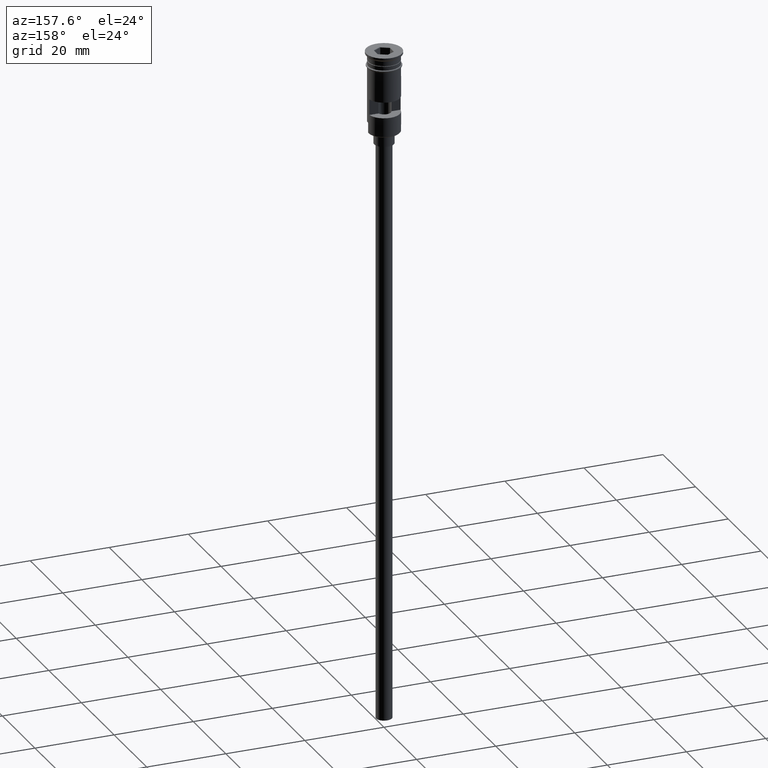
[diagram: clean part render]
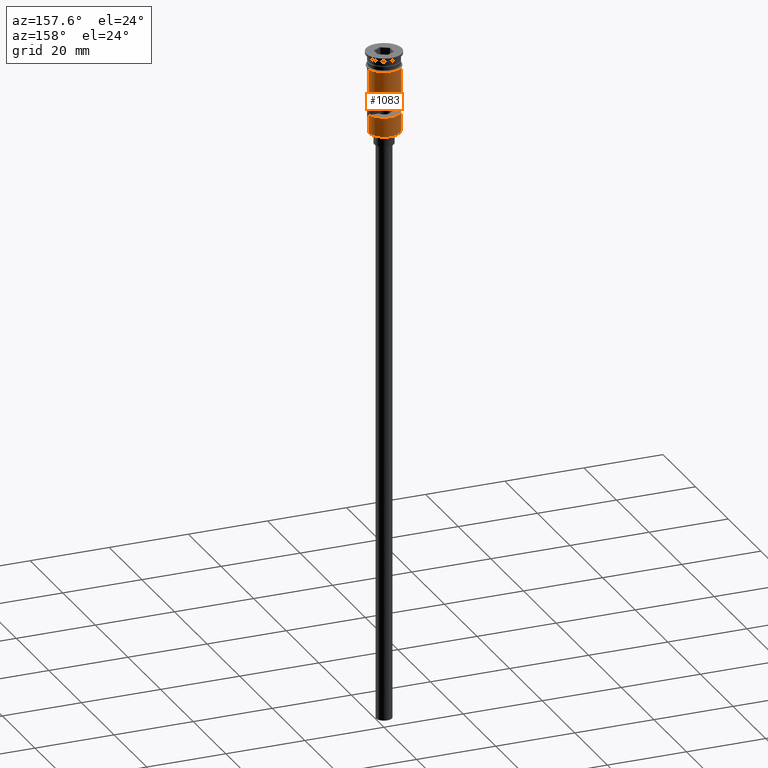
[diagram: same view with one face highlighted and labeled with its STEP entity id]
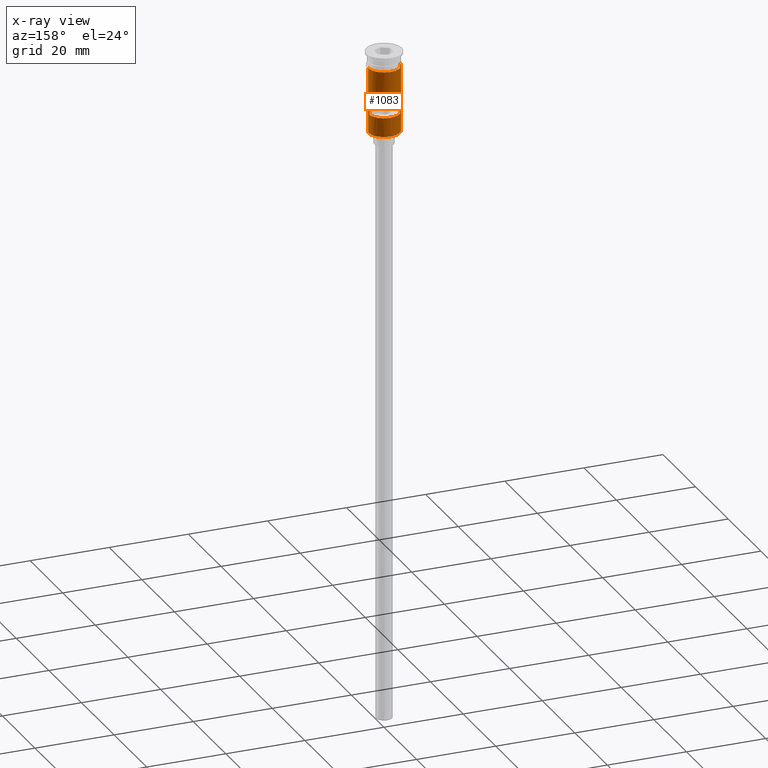
[diagram: x-ray of the same camera — body ghosted, the highlighted face saturated]
A machine part, auxiliary view. The second image highlights one B-rep face of the part: STEP entity #1083.
The next image is the same camera in x-ray: the body ghosted, the highlighted face saturated — about 0% of this face is hidden behind the body in this view.
In plain terms, the highlighted cylindrical surface (edge-blend (fillet) strip) has radius 4 mm, axis along (-0, -0, 1).
Its self-contained STEP definition (entity closure, byte-faithful):
#5 = EDGE_CURVE ( 'NONE', #924, #1554, #659, .T. ) ;
#10 = CIRCLE ( 'NONE', #212, 4.000000000000000000 ) ;
#20 = VERTEX_POINT ( 'NONE', #889 ) ;
#34 = AXIS2_PLACEMENT_3D ( 'NONE', #89, #579, #732 ) ;
#39 = CARTESIAN_POINT ( 'NONE',  ( 4.000000000000000000, 0.000000000000000000, -3.799999999999998490 ) ) ;
#64 = DIRECTION ( 'NONE',  ( 0.000000000000000000, 0.000000000000000000, 1.000000000000000000 ) ) ;
#71 = DIRECTION ( 'NONE',  ( -0.000000000000000000, -0.000000000000000000, 1.000000000000000000 ) ) ;
#80 = VECTOR ( 'NONE', #232, 1000.000000000000000 ) ;
#84 = EDGE_LOOP ( 'NONE', ( #1276, #1060, #537, #660, #120, #999 ) ) ;
#89 = CARTESIAN_POINT ( 'NONE',  ( 0.000000000000000000, 0.000000000000000000, -11.50000000000000000 ) ) ;
#91 = CARTESIAN_POINT ( 'NONE',  ( -3.954743986657037524, 0.5999999999999996447, -15.50000000000000000 ) ) ;
#109 = VERTEX_POINT ( 'NONE', #39 ) ;
#114 = VERTEX_POINT ( 'NONE', #521 ) ;
#120 = ORIENTED_EDGE ( 'NONE', *, *, #931, .F. ) ;
#137 = CIRCLE ( 'NONE', #34, 4.000000000000000000 ) ;
#212 = AXIS2_PLACEMENT_3D ( 'NONE', #677, #64, #555 ) ;
#232 = DIRECTION ( 'NONE',  ( -0.000000000000000000, -0.000000000000000000, 1.000000000000000000 ) ) ;
#255 = CARTESIAN_POINT ( 'NONE',  ( 3.954743986657037524, 0.5999999999999996447, 0.000000000000000000 ) ) ;
#282 = AXIS2_PLACEMENT_3D ( 'NONE', #1076, #595, #733 ) ;
#288 = VECTOR ( 'NONE', #405, 1000.000000000000000 ) ;
#314 = CYLINDRICAL_SURFACE ( 'NONE', #1323, 4.000000000000000000 ) ;
#322 = EDGE_CURVE ( 'NONE', #720, #1559, #1100, .T. ) ;
#331 = CARTESIAN_POINT ( 'NONE',  ( -4.000000000000000000, 4.898587196589412829E-16, 0.000000000000000000 ) ) ;
#337 = EDGE_CURVE ( 'NONE', #1554, #1435, #987, .T. ) ;
#339 = VERTEX_POINT ( 'NONE', #1568 ) ;
#373 = CARTESIAN_POINT ( 'NONE',  ( -4.000000000000000000, 4.898587196589412829E-16, -3.799999999999998490 ) ) ;
#380 = VECTOR ( 'NONE', #1130, 1000.000000000000000 ) ;
#392 = LINE ( 'NONE', #885, #992 ) ;
#405 = DIRECTION ( 'NONE',  ( -0.000000000000000000, -0.000000000000000000, 1.000000000000000000 ) ) ;
#435 = ORIENTED_EDGE ( 'NONE', *, *, #337, .F. ) ;
#444 = EDGE_CURVE ( 'NONE', #109, #1559, #1502, .T. ) ;
#446 = CARTESIAN_POINT ( 'NONE',  ( -3.999999999999997335, 0.000000000000000000, -17.79999999999998295 ) ) ;
#521 = CARTESIAN_POINT ( 'NONE',  ( 3.999999999999997335, 4.898587196589409870E-16, -20.29999999999997584 ) ) ;
#537 = ORIENTED_EDGE ( 'NONE', *, *, #444, .F. ) ;
#555 = DIRECTION ( 'NONE',  ( -1.000000000000000000, 0.000000000000000000, 0.000000000000000000 ) ) ;
#579 = DIRECTION ( 'NONE',  ( -0.000000000000000000, 0.000000000000000000, -1.000000000000000000 ) ) ;
#595 = DIRECTION ( 'NONE',  ( 0.000000000000000000, 0.000000000000000000, 1.000000000000000000 ) ) ;
#626 = EDGE_CURVE ( 'NONE', #20, #109, #1405, .T. ) ;
#659 = LINE ( 'NONE', #255, #380 ) ;
#660 = ORIENTED_EDGE ( 'NONE', *, *, #626, .F. ) ;
#663 = LINE ( 'NONE', #794, #750 ) ;
#677 = CARTESIAN_POINT ( 'NONE',  ( 0.000000000000000000, 0.000000000000000000, -20.29999999999997584 ) ) ;
#683 = CARTESIAN_POINT ( 'NONE',  ( -3.999999999999997335, 0.000000000000000000, -20.29999999999997584 ) ) ;
#720 = VERTEX_POINT ( 'NONE', #446 ) ;
#732 = DIRECTION ( 'NONE',  ( 1.000000000000000000, 0.000000000000000000, 0.000000000000000000 ) ) ;
#733 = DIRECTION ( 'NONE',  ( -1.000000000000000000, 0.000000000000000000, 0.000000000000000000 ) ) ;
#750 = VECTOR ( 'NONE', #1418, 1000.000000000000000 ) ;
#770 = EDGE_CURVE ( 'NONE', #339, #924, #137, .T. ) ;
#794 = CARTESIAN_POINT ( 'NONE',  ( -3.954743986657037524, 0.5999999999999996447, 0.000000000000000000 ) ) ;
#802 = AXIS2_PLACEMENT_3D ( 'NONE', #1113, #1504, #1121 ) ;
#827 = ORIENTED_EDGE ( 'NONE', *, *, #990, .F. ) ;
#885 = CARTESIAN_POINT ( 'NONE',  ( 3.999999999999997335, 4.898587196589409870E-16, -20.49999999999999645 ) ) ;
#889 = CARTESIAN_POINT ( 'NONE',  ( 4.000000000000000000, 4.898587196589412829E-16, -17.79999999999998295 ) ) ;
#911 = FACE_OUTER_BOUND ( 'NONE', #84, .T. ) ;
#924 = VERTEX_POINT ( 'NONE', #1263 ) ;
#931 = EDGE_CURVE ( 'NONE', #114, #20, #392, .T. ) ;
#954 = ORIENTED_EDGE ( 'NONE', *, *, #770, .F. ) ;
#987 = CIRCLE ( 'NONE', #282, 4.000000000000000000 ) ;
#990 = EDGE_CURVE ( 'NONE', #1435, #339, #663, .T. ) ;
#992 = VECTOR ( 'NONE', #1380, 1000.000000000000000 ) ;
#999 = ORIENTED_EDGE ( 'NONE', *, *, #1102, .T. ) ;
#1032 = FACE_BOUND ( 'NONE', #1325, .T. ) ;
#1048 = CARTESIAN_POINT ( 'NONE',  ( 4.000000000000000000, 0.000000000000000000, 0.000000000000000000 ) ) ;
#1060 = ORIENTED_EDGE ( 'NONE', *, *, #322, .T. ) ;
#1076 = CARTESIAN_POINT ( 'NONE',  ( 0.000000000000000000, 0.000000000000000000, -15.50000000000000000 ) ) ;
#1083 = ADVANCED_FACE ( 'NONE', ( #1032, #911 ), #314, .T. ) ;
#1100 = LINE ( 'NONE', #331, #80 ) ;
#1102 = EDGE_CURVE ( 'NONE', #114, #1523, #10, .T. ) ;
#1113 = CARTESIAN_POINT ( 'NONE',  ( 0.000000000000000000, 0.000000000000000000, -3.799999999999998490 ) ) ;
#1121 = DIRECTION ( 'NONE',  ( 1.000000000000000000, 0.000000000000000000, 0.000000000000000000 ) ) ;
#1130 = DIRECTION ( 'NONE',  ( 0.000000000000000000, 0.000000000000000000, -1.000000000000000000 ) ) ;
#1201 = CARTESIAN_POINT ( 'NONE',  ( 3.954743986657038413, 0.5999999999999996447, -15.50000000000000000 ) ) ;
#1263 = CARTESIAN_POINT ( 'NONE',  ( 3.954743986657038413, 0.5999999999999996447, -11.50000000000000000 ) ) ;
#1276 = ORIENTED_EDGE ( 'NONE', *, *, #1425, .T. ) ;
#1305 = CARTESIAN_POINT ( 'NONE',  ( 0.000000000000000000, 0.000000000000000000, 0.000000000000000000 ) ) ;
#1323 = AXIS2_PLACEMENT_3D ( 'NONE', #1305, #1536, #1404 ) ;
#1325 = EDGE_LOOP ( 'NONE', ( #1498, #954, #827, #435 ) ) ;
#1348 = VECTOR ( 'NONE', #71, 1000.000000000000000 ) ;
#1380 = DIRECTION ( 'NONE',  ( -0.000000000000000000, -0.000000000000000000, 1.000000000000000000 ) ) ;
#1402 = CARTESIAN_POINT ( 'NONE',  ( -3.999999999999997335, 0.000000000000000000, -20.49999999999999645 ) ) ;
#1404 = DIRECTION ( 'NONE',  ( 1.000000000000000000, 0.000000000000000000, 0.000000000000000000 ) ) ;
#1405 = LINE ( 'NONE', #1048, #1348 ) ;
#1418 = DIRECTION ( 'NONE',  ( -0.000000000000000000, -0.000000000000000000, 1.000000000000000000 ) ) ;
#1425 = EDGE_CURVE ( 'NONE', #1523, #720, #1518, .T. ) ;
#1435 = VERTEX_POINT ( 'NONE', #91 ) ;
#1498 = ORIENTED_EDGE ( 'NONE', *, *, #5, .F. ) ;
#1502 = CIRCLE ( 'NONE', #802, 4.000000000000000000 ) ;
#1504 = DIRECTION ( 'NONE',  ( -0.000000000000000000, -0.000000000000000000, 1.000000000000000000 ) ) ;
#1518 = LINE ( 'NONE', #1402, #288 ) ;
#1523 = VERTEX_POINT ( 'NONE', #683 ) ;
#1536 = DIRECTION ( 'NONE',  ( -0.000000000000000000, -0.000000000000000000, 1.000000000000000000 ) ) ;
#1554 = VERTEX_POINT ( 'NONE', #1201 ) ;
#1559 = VERTEX_POINT ( 'NONE', #373 ) ;
#1568 = CARTESIAN_POINT ( 'NONE',  ( -3.954743986657037524, 0.5999999999999996447, -11.50000000000000000 ) ) ;